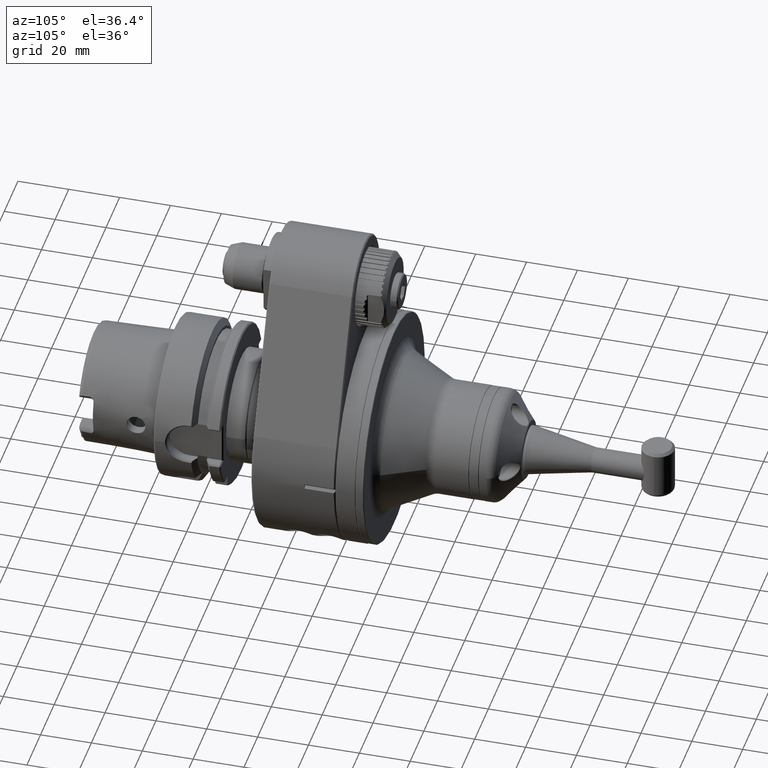
[diagram: clean part render]
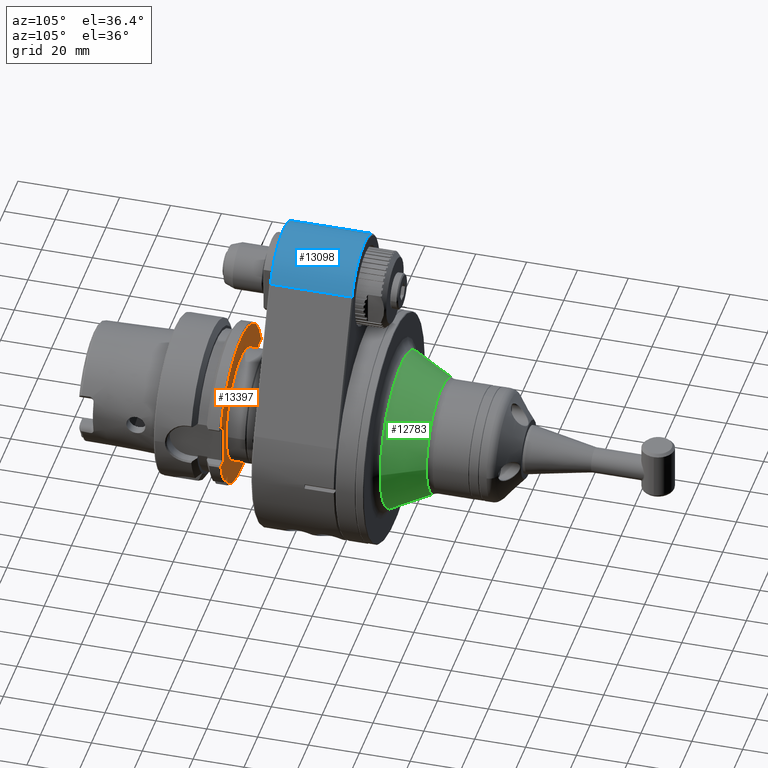
[diagram: same view with three faces highlighted in distinct colors, each labeled with its STEP entity id]
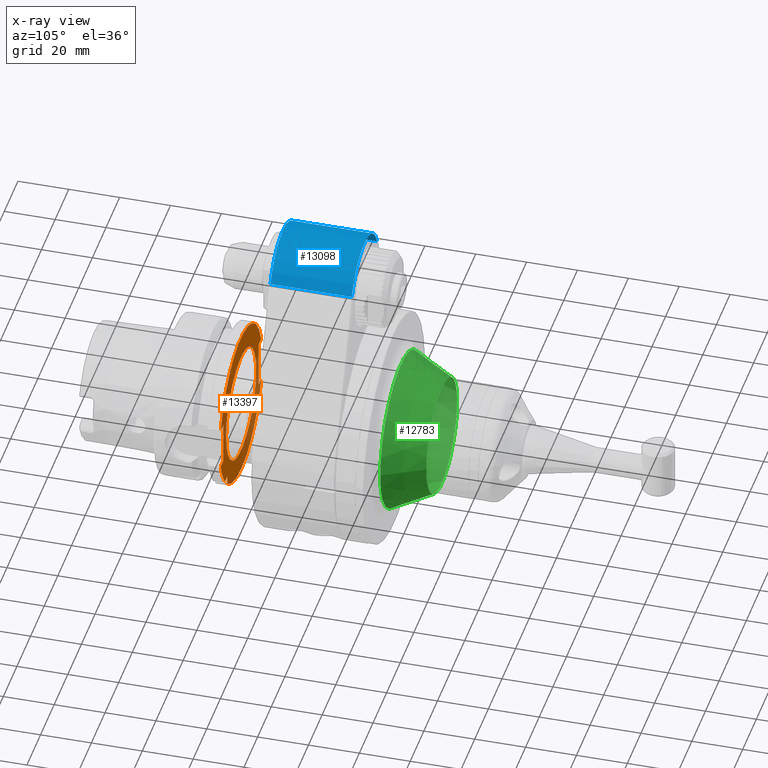
[diagram: x-ray of the same camera — body ghosted, the three highlighted faces saturated]
A machine part, auxiliary view with three faces highlighted in distinct colors.
The next image is the same camera in x-ray (body ghosted, the three faces saturated) — at least one of them is partly hidden behind the body in this view.
Their STEP definitions:

[orange] entity #13397 — the highlighted planar face has unit normal (0, -1, 0).
#1355=LINE('',#29029,#2330);
#1356=LINE('',#29031,#2331);
#1357=LINE('',#29033,#2332);
#1358=LINE('',#29037,#2333);
#1359=LINE('',#29039,#2334);
#1360=LINE('',#29041,#2335);
#1361=LINE('',#29045,#2336);
#1362=LINE('',#29047,#2337);
#2330=VECTOR('',#18404,3.50854124258);
#2331=VECTOR('',#18405,19.);
#2332=VECTOR('',#18406,3.508523561232);
#2333=VECTOR('',#18409,3.811936832667);
#2334=VECTOR('',#18410,17.);
#2335=VECTOR('',#18411,3.811551617455);
#2336=VECTOR('',#18414,3.685095581617);
#2337=VECTOR('',#18415,3.685145798483);
#2746=FACE_BOUND('',#4263,.T.);
#3412=FACE_OUTER_BOUND('',#4262,.T.);
#4262=EDGE_LOOP('',(#11778,#11779,#11780,#11781,#11782,#11783,#11784,#11785,
#11786,#11787,#11788));
#4263=EDGE_LOOP('',(#11789));
#4994=CIRCLE('',#14800,22.);
#4995=CIRCLE('',#14802,31.00006638597);
#4996=CIRCLE('',#14803,30.99982874756);
#4997=CIRCLE('',#14804,30.99982874756);
#6188=VERTEX_POINT('',#29023);
#6189=VERTEX_POINT('',#29027);
#6190=VERTEX_POINT('',#29028);
#6191=VERTEX_POINT('',#29030);
#6192=VERTEX_POINT('',#29032);
#6193=VERTEX_POINT('',#29034);
#6194=VERTEX_POINT('',#29036);
#6195=VERTEX_POINT('',#29038);
#6196=VERTEX_POINT('',#29040);
#6197=VERTEX_POINT('',#29042);
#6198=VERTEX_POINT('',#29044);
#6199=VERTEX_POINT('',#29046);
#8079=EDGE_CURVE('',#6188,#6188,#4994,.T.);
#8081=EDGE_CURVE('',#6189,#6190,#1355,.T.);
#8082=EDGE_CURVE('',#6191,#6190,#1356,.T.);
#8083=EDGE_CURVE('',#6191,#6192,#1357,.T.);
#8084=EDGE_CURVE('',#6192,#6193,#4995,.T.);
#8085=EDGE_CURVE('',#6193,#6194,#1358,.T.);
#8086=EDGE_CURVE('',#6194,#6195,#1359,.T.);
#8087=EDGE_CURVE('',#6195,#6196,#1360,.T.);
#8088=EDGE_CURVE('',#6196,#6197,#4996,.T.);
#8089=EDGE_CURVE('',#6197,#6198,#1361,.T.);
#8090=EDGE_CURVE('',#6199,#6198,#1362,.T.);
#8091=EDGE_CURVE('',#6199,#6189,#4997,.T.);
#11778=ORIENTED_EDGE('',*,*,#8081,.T.);
#11779=ORIENTED_EDGE('',*,*,#8082,.F.);
#11780=ORIENTED_EDGE('',*,*,#8083,.T.);
#11781=ORIENTED_EDGE('',*,*,#8084,.T.);
#11782=ORIENTED_EDGE('',*,*,#8085,.T.);
#11783=ORIENTED_EDGE('',*,*,#8086,.T.);
#11784=ORIENTED_EDGE('',*,*,#8087,.T.);
#11785=ORIENTED_EDGE('',*,*,#8088,.T.);
#11786=ORIENTED_EDGE('',*,*,#8089,.T.);
#11787=ORIENTED_EDGE('',*,*,#8090,.F.);
#11788=ORIENTED_EDGE('',*,*,#8091,.T.);
#11789=ORIENTED_EDGE('',*,*,#8079,.T.);
#12691=PLANE('',#14801);
#13397=ADVANCED_FACE('',(#3412,#2746),#12691,.F.);
#14800=AXIS2_PLACEMENT_3D('',#29024,#18399,#18400);
#14801=AXIS2_PLACEMENT_3D('',#29026,#18402,#18403);
#14802=AXIS2_PLACEMENT_3D('',#29035,#18407,#18408);
#14803=AXIS2_PLACEMENT_3D('',#29043,#18412,#18413);
#14804=AXIS2_PLACEMENT_3D('',#29048,#18416,#18417);
#18399=DIRECTION('center_axis',(0.,-1.,0.));
#18400=DIRECTION('ref_axis',(-1.,0.,0.));
#18402=DIRECTION('center_axis',(0.,-1.,0.));
#18403=DIRECTION('ref_axis',(-1.,0.,0.));
#18404=DIRECTION('',(1.,0.,0.));
#18405=DIRECTION('',(0.,0.,-1.));
#18406=DIRECTION('',(-1.,0.,0.));
#18407=DIRECTION('center_axis',(0.,1.,0.));
#18408=DIRECTION('ref_axis',(-0.951885386140749,0.,0.306454257029784));
#18409=DIRECTION('',(-1.,0.,0.));
#18410=DIRECTION('',(0.,0.,-1.));
#18411=DIRECTION('',(1.,0.,0.));
#18412=DIRECTION('center_axis',(0.,1.,0.));
#18413=DIRECTION('ref_axis',(0.961675113080922,0.,-0.274191496733206));
#18414=DIRECTION('',(-1.,0.,0.));
#18415=DIRECTION('',(0.,0.,1.));
#18416=DIRECTION('center_axis',(0.,1.,0.));
#18417=DIRECTION('ref_axis',(0.64517169955072,0.,-0.764037615630824));
#29023=CARTESIAN_POINT('',(22.,-24.,2.69422295812418E-15));
#29024=CARTESIAN_POINT('Origin',(0.,-24.,0.));
#29026=CARTESIAN_POINT('Origin',(0.,-24.,0.));
#29027=CARTESIAN_POINT('',(-29.50854124258,-24.,-9.5));
#29028=CARTESIAN_POINT('',(-26.,-24.,-9.5));
#29029=CARTESIAN_POINT('',(-29.50854124258,-24.,-9.5));
#29030=CARTESIAN_POINT('',(-26.,-24.,9.5));
#29031=CARTESIAN_POINT('',(-26.,-24.,9.5));
#29032=CARTESIAN_POINT('',(-29.50852356123,-24.,9.5));
#29033=CARTESIAN_POINT('',(-26.,-24.,9.5));
#29034=CARTESIAN_POINT('',(29.81193683267,-24.,8.5));
#29035=CARTESIAN_POINT('Origin',(-1.339902968941E-5,-24.,-0.0001023121876473));
#29036=CARTESIAN_POINT('',(26.,-24.,8.5));
#29037=CARTESIAN_POINT('',(29.81193683267,-24.,8.5));
#29038=CARTESIAN_POINT('',(26.,-24.,-8.5));
#29039=CARTESIAN_POINT('',(26.,-24.,8.5));
#29040=CARTESIAN_POINT('',(29.81155161745,-24.,-8.5));
#29041=CARTESIAN_POINT('',(26.,-24.,-8.5));
#29042=CARTESIAN_POINT('',(23.68509558162,-24.,-20.));
#29043=CARTESIAN_POINT('Origin',(-0.0002121988452196,-24.,-0.0001105572328912));
#29044=CARTESIAN_POINT('',(20.,-24.,-20.));
#29045=CARTESIAN_POINT('',(23.68509558162,-24.,-20.));
#29046=CARTESIAN_POINT('',(20.,-24.,-23.68514579848));
#29047=CARTESIAN_POINT('',(20.,-24.,-23.68514579848));
#29048=CARTESIAN_POINT('Origin',(-0.0002121988452196,-24.,-0.0001105572328912));

[blue] entity #13098 — the highlighted cylindrical surface (partial cylindrical patch) has radius 20 mm, axis along (0, -1, 0).
#881=LINE('',#25794,#1856);
#885=LINE('',#25805,#1860);
#1856=VECTOR('',#16800,31.99992477058);
#1860=VECTOR('',#16814,31.99992477141);
#2544=CYLINDRICAL_SURFACE('',#14245,20.);
#3113=FACE_OUTER_BOUND('',#3938,.T.);
#3938=EDGE_LOOP('',(#10144,#10145,#10146,#10147));
#4748=CIRCLE('',#14239,20.);
#4749=CIRCLE('',#14244,20.);
#5662=VERTEX_POINT('',#25788);
#5663=VERTEX_POINT('',#25792);
#5664=VERTEX_POINT('',#25798);
#5665=VERTEX_POINT('',#25804);
#7265=EDGE_CURVE('',#5662,#5663,#881,.T.);
#7267=EDGE_CURVE('',#5663,#5664,#4748,.T.);
#7270=EDGE_CURVE('',#5665,#5664,#885,.T.);
#7274=EDGE_CURVE('',#5665,#5662,#4749,.T.);
#10144=ORIENTED_EDGE('',*,*,#7267,.F.);
#10145=ORIENTED_EDGE('',*,*,#7265,.F.);
#10146=ORIENTED_EDGE('',*,*,#7274,.F.);
#10147=ORIENTED_EDGE('',*,*,#7270,.T.);
#13098=ADVANCED_FACE('',(#3113),#2544,.T.);
#14239=AXIS2_PLACEMENT_3D('',#25799,#16806,#16807);
#14244=AXIS2_PLACEMENT_3D('',#25811,#16822,#16823);
#14245=AXIS2_PLACEMENT_3D('',#25812,#16824,#16825);
#16800=DIRECTION('',(0.,-1.,0.));
#16806=DIRECTION('center_axis',(0.,-1.,0.));
#16807=DIRECTION('ref_axis',(0.923076923076914,0.,0.384615384615406));
#16814=DIRECTION('',(0.,-1.,0.));
#16822=DIRECTION('center_axis',(0.,1.,0.));
#16823=DIRECTION('ref_axis',(-0.923076923076914,0.,0.384615384615406));
#16824=DIRECTION('center_axis',(0.,-1.,0.));
#16825=DIRECTION('ref_axis',(1.,0.,0.));
#25788=CARTESIAN_POINT('',(18.4614978283511,24.4999064287236,72.6922907028682));
#25792=CARTESIAN_POINT('',(18.4615405299971,-7.49984412639147,72.6923085541672));
#25794=CARTESIAN_POINT('',(18.46150375931,24.49996238529,72.6922931741));
#25798=CARTESIAN_POINT('',(-18.4614978307601,-7.49990642887595,72.6922906960876));
#25799=CARTESIAN_POINT('Origin',(-1.009051995875E-14,-7.499699071874,65.));
#25804=CARTESIAN_POINT('',(-18.4615405299999,24.4998441263903,72.6923085541683));
#25805=CARTESIAN_POINT('',(-18.46150376168,24.49996238571,72.69229316731));
#25811=CARTESIAN_POINT('Origin',(0.,24.49969907187,65.));
#25812=CARTESIAN_POINT('Origin',(0.,25.,65.));

[green] entity #12783 — the highlighted conical surface has half-angle 27 deg.
#354=CONICAL_SURFACE('',#13661,26.6212712994,0.471238898038469);
#562=LINE('',#19371,#1537);
#1537=VECTOR('',#15331,26.6212712994);
#2798=FACE_OUTER_BOUND('',#3580,.T.);
#3580=EDGE_LOOP('',(#8612,#8613,#8614,#8615,#8616,#8617));
#4458=CIRCLE('',#13658,30.69757521975);
#4459=CIRCLE('',#13659,30.69757521975);
#4461=CIRCLE('',#13662,22.54496737906);
#4462=CIRCLE('',#13663,22.54496737906);
#5203=VERTEX_POINT('',#19364);
#5204=VERTEX_POINT('',#19365);
#5205=VERTEX_POINT('',#19370);
#5206=VERTEX_POINT('',#19372);
#6523=EDGE_CURVE('',#5203,#5204,#4458,.T.);
#6524=EDGE_CURVE('',#5204,#5203,#4459,.T.);
#6526=EDGE_CURVE('',#5203,#5205,#562,.T.);
#6527=EDGE_CURVE('',#5206,#5205,#4461,.T.);
#6528=EDGE_CURVE('',#5205,#5206,#4462,.T.);
#8612=ORIENTED_EDGE('',*,*,#6523,.T.);
#8613=ORIENTED_EDGE('',*,*,#6524,.T.);
#8614=ORIENTED_EDGE('',*,*,#6526,.T.);
#8615=ORIENTED_EDGE('',*,*,#6527,.F.);
#8616=ORIENTED_EDGE('',*,*,#6528,.F.);
#8617=ORIENTED_EDGE('',*,*,#6526,.F.);
#12783=ADVANCED_FACE('',(#2798),#354,.T.);
#13658=AXIS2_PLACEMENT_3D('',#19366,#15323,#15324);
#13659=AXIS2_PLACEMENT_3D('',#19367,#15325,#15326);
#13661=AXIS2_PLACEMENT_3D('',#19369,#15329,#15330);
#13662=AXIS2_PLACEMENT_3D('',#19373,#15332,#15333);
#13663=AXIS2_PLACEMENT_3D('',#19374,#15334,#15335);
#15323=DIRECTION('center_axis',(0.,1.,0.));
#15324=DIRECTION('ref_axis',(1.,0.,0.));
#15325=DIRECTION('center_axis',(0.,1.,0.));
#15326=DIRECTION('ref_axis',(1.,0.,0.));
#15329=DIRECTION('center_axis',(0.,-1.,0.));
#15330=DIRECTION('ref_axis',(-1.,0.,0.));
#15331=DIRECTION('',(-0.453990499739547,0.891006524188368,-5.55978012349343E-17));
#15332=DIRECTION('center_axis',(0.,1.,0.));
#15333=DIRECTION('ref_axis',(-1.,0.,0.));
#15334=DIRECTION('center_axis',(0.,1.,0.));
#15335=DIRECTION('ref_axis',(-1.,0.,0.));
#19364=CARTESIAN_POINT('',(30.69757521975,38.9300475013,0.));
#19365=CARTESIAN_POINT('',(-30.6975678488535,38.9300475013,-0.0212729227967865));
#19366=CARTESIAN_POINT('Origin',(0.,38.9300475013,0.));
#19367=CARTESIAN_POINT('Origin',(0.,38.9300475013,0.));
#19369=CARTESIAN_POINT('Origin',(0.,46.930244399,0.));
#19370=CARTESIAN_POINT('',(22.5449673790564,54.9304412966982,2.76096221376429E-15));
#19371=CARTESIAN_POINT('',(26.6212712994,46.930244399,3.26016546860435E-15));
#19372=CARTESIAN_POINT('',(-22.5449613105033,54.9304412967,-0.0165417891486448));
#19373=CARTESIAN_POINT('Origin',(0.,54.9304412967,0.));
#19374=CARTESIAN_POINT('Origin',(0.,54.9304412967,0.));